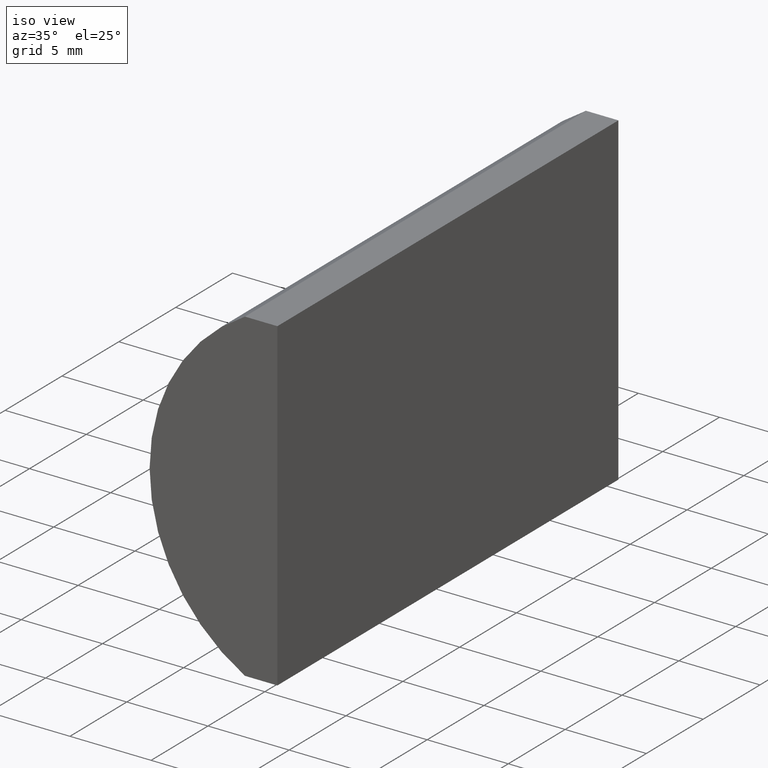
[diagram: clean part render]
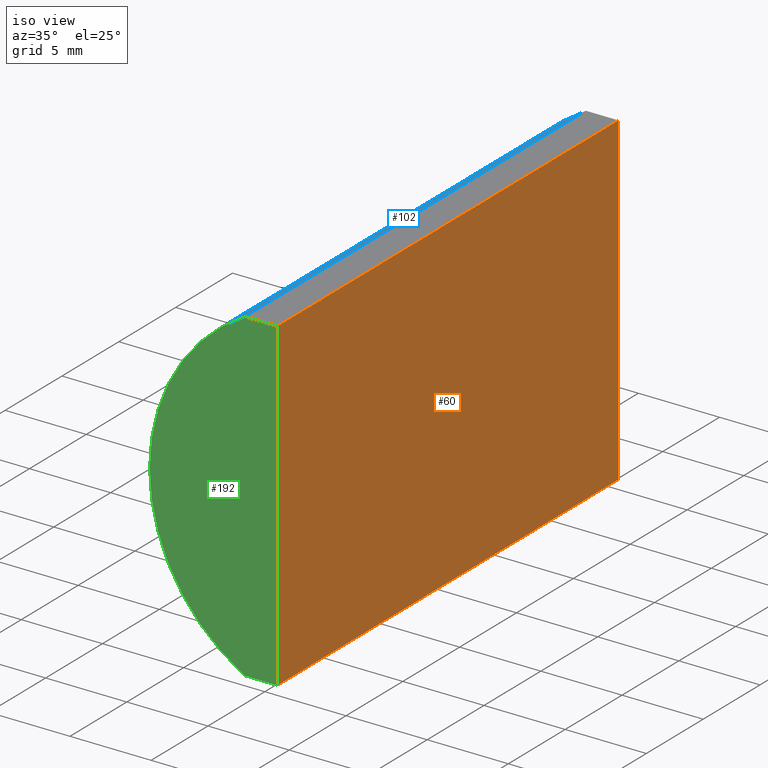
[diagram: same view with three faces highlighted in distinct colors, each labeled with its STEP entity id]
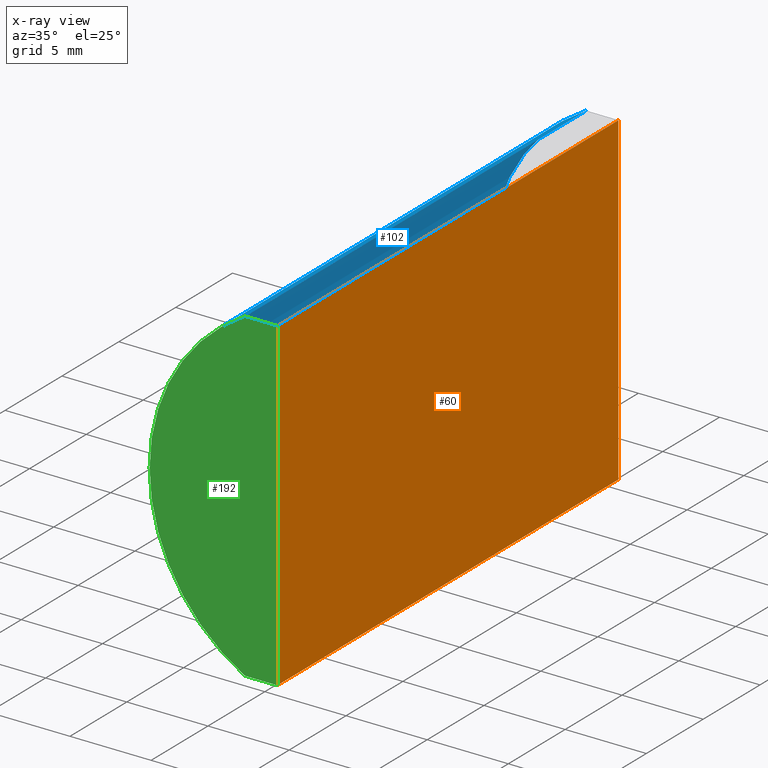
[diagram: x-ray of the same camera — body ghosted, the three highlighted faces saturated]
A machine part, iso view with three faces highlighted in distinct colors.
The next image is the same camera in x-ray (body ghosted, the three faces saturated) — at least one of them is partly hidden behind the body in this view.
Their STEP definitions:

[orange] entity #60 — the highlighted planar face has unit normal (-1, 0, 0).
#3 = ORIENTED_EDGE ( 'NONE', *, *, #173, .F. ) ;
#22 = CARTESIAN_POINT ( 'NONE',  ( 0.7752043348512593900, 0.0000000000000000000, -10.00000000000000400 ) ) ;
#24 = ORIENTED_EDGE ( 'NONE', *, *, #80, .T. ) ;
#27 = PLANE ( 'NONE',  #100 ) ;
#40 = VERTEX_POINT ( 'NONE', #22 ) ;
#45 = ORIENTED_EDGE ( 'NONE', *, *, #187, .T. ) ;
#47 = CARTESIAN_POINT ( 'NONE',  ( 0.7752043348512593900, 0.0000000000000000000, -10.00000000000000400 ) ) ;
#54 = VECTOR ( 'NONE', #93, 1000.000000000000000 ) ;
#57 = CARTESIAN_POINT ( 'NONE',  ( 0.7752043348512593900, 30.00000000000000000, -10.00000000000000400 ) ) ;
#60 = ADVANCED_FACE ( 'NONE', ( #117 ), #27, .F. ) ;
#61 = CARTESIAN_POINT ( 'NONE',  ( 0.7752043348512655000, 30.00000000000000000, 10.00000000000000000 ) ) ;
#64 = DIRECTION ( 'NONE',  ( 3.035766082959411900E-016, 0.0000000000000000000, 1.000000000000000000 ) ) ;
#66 = LINE ( 'NONE', #57, #142 ) ;
#68 = VERTEX_POINT ( 'NONE', #124 ) ;
#71 = CARTESIAN_POINT ( 'NONE',  ( 0.7752043348512593900, 30.00000000000000000, -10.00000000000000400 ) ) ;
#75 = DIRECTION ( 'NONE',  ( -0.0000000000000000000, -1.000000000000000000, -0.0000000000000000000 ) ) ;
#76 = EDGE_LOOP ( 'NONE', ( #45, #153, #3, #24 ) ) ;
#80 = EDGE_CURVE ( 'NONE', #68, #149, #162, .T. ) ;
#82 = CARTESIAN_POINT ( 'NONE',  ( 0.7752043348512593900, 30.00000000000000000, -10.00000000000000400 ) ) ;
#93 = DIRECTION ( 'NONE',  ( -0.0000000000000000000, -1.000000000000000000, -0.0000000000000000000 ) ) ;
#100 = AXIS2_PLACEMENT_3D ( 'NONE', #150, #147, #64 ) ;
#106 = CARTESIAN_POINT ( 'NONE',  ( 0.7752043348512655000, 0.0000000000000000000, 10.00000000000000000 ) ) ;
#112 = VECTOR ( 'NONE', #138, 1000.000000000000000 ) ;
#113 = EDGE_CURVE ( 'NONE', #125, #40, #66, .T. ) ;
#117 = FACE_OUTER_BOUND ( 'NONE', #76, .T. ) ;
#118 = LINE ( 'NONE', #47, #176 ) ;
#124 = CARTESIAN_POINT ( 'NONE',  ( 0.7752043348512655000, 30.00000000000000000, 10.00000000000000000 ) ) ;
#125 = VERTEX_POINT ( 'NONE', #71 ) ;
#138 = DIRECTION ( 'NONE',  ( -3.035766082959411900E-016, -0.0000000000000000000, -1.000000000000000000 ) ) ;
#142 = VECTOR ( 'NONE', #75, 1000.000000000000000 ) ;
#147 = DIRECTION ( 'NONE',  ( -1.000000000000000000, 0.0000000000000000000, 3.035766082959411900E-016 ) ) ;
#149 = VERTEX_POINT ( 'NONE', #106 ) ;
#150 = CARTESIAN_POINT ( 'NONE',  ( 0.7752043348512593900, 30.00000000000000000, -10.00000000000000400 ) ) ;
#153 = ORIENTED_EDGE ( 'NONE', *, *, #113, .F. ) ;
#156 = LINE ( 'NONE', #82, #112 ) ;
#162 = LINE ( 'NONE', #61, #54 ) ;
#173 = EDGE_CURVE ( 'NONE', #68, #125, #156, .T. ) ;
#176 = VECTOR ( 'NONE', #204, 1000.000000000000000 ) ;
#187 = EDGE_CURVE ( 'NONE', #149, #40, #118, .T. ) ;
#204 = DIRECTION ( 'NONE',  ( -3.035766082959411900E-016, -0.0000000000000000000, -1.000000000000000000 ) ) ;

[blue] entity #102 — the highlighted cylindrical surface (partial cylindrical patch) has radius 11.45 mm, axis along (-0, -1, -0).
#1 = EDGE_CURVE ( 'NONE', #183, #32, #134, .T. ) ;
#4 = EDGE_CURVE ( 'NONE', #175, #183, #56, .T. ) ;
#5 = VECTOR ( 'NONE', #172, 1000.000000000000000 ) ;
#6 = CARTESIAN_POINT ( 'NONE',  ( -1.221757203477694200, 0.0000000000000000000, 10.00000000000000000 ) ) ;
#11 = ORIENTED_EDGE ( 'NONE', *, *, #1, .F. ) ;
#12 = ORIENTED_EDGE ( 'NONE', *, *, #4, .F. ) ;
#23 = CARTESIAN_POINT ( 'NONE',  ( -1.221757203477694200, 30.00000000000000000, 10.00000000000000000 ) ) ;
#29 = EDGE_LOOP ( 'NONE', ( #73, #11, #12, #131 ) ) ;
#32 = VERTEX_POINT ( 'NONE', #6 ) ;
#37 = DIRECTION ( 'NONE',  ( 0.0000000000000000000, 1.000000000000000000, 0.0000000000000000000 ) ) ;
#41 = DIRECTION ( 'NONE',  ( -0.0000000000000000000, -1.000000000000000000, -0.0000000000000000000 ) ) ;
#42 = CARTESIAN_POINT ( 'NONE',  ( -1.221757203477650000, 30.00000000000000000, -10.00000000000000000 ) ) ;
#46 = DIRECTION ( 'NONE',  ( 0.0000000000000000000, 1.000000000000000000, 0.0000000000000000000 ) ) ;
#48 = EDGE_CURVE ( 'NONE', #175, #119, #88, .T. ) ;
#49 = CARTESIAN_POINT ( 'NONE',  ( -1.221757203477650000, 30.00000000000000000, -10.00000000000000000 ) ) ;
#50 = CYLINDRICAL_SURFACE ( 'NONE', #114, 11.45000000000001200 ) ;
#56 = CIRCLE ( 'NONE', #97, 11.45000000000001200 ) ;
#72 = CARTESIAN_POINT ( 'NONE',  ( 4.355204334851265500, 30.00000000000000000, 4.286263797015675000E-017 ) ) ;
#73 = ORIENTED_EDGE ( 'NONE', *, *, #152, .T. ) ;
#88 = LINE ( 'NONE', #49, #122 ) ;
#89 = CARTESIAN_POINT ( 'NONE',  ( -1.221757203477694200, 30.00000000000000000, 10.00000000000000000 ) ) ;
#94 = DIRECTION ( 'NONE',  ( -0.0000000000000000000, -1.000000000000000000, -0.0000000000000000000 ) ) ;
#95 = DIRECTION ( 'NONE',  ( 0.0000000000000000000, 0.0000000000000000000, 1.000000000000000000 ) ) ;
#97 = AXIS2_PLACEMENT_3D ( 'NONE', #143, #37, #108 ) ;
#101 = FACE_OUTER_BOUND ( 'NONE', #29, .T. ) ;
#102 = ADVANCED_FACE ( 'NONE', ( #101 ), #50, .T. ) ;
#108 = DIRECTION ( 'NONE',  ( 0.0000000000000000000, 0.0000000000000000000, 1.000000000000000000 ) ) ;
#114 = AXIS2_PLACEMENT_3D ( 'NONE', #72, #94, #197 ) ;
#119 = VERTEX_POINT ( 'NONE', #164 ) ;
#122 = VECTOR ( 'NONE', #41, 1000.000000000000000 ) ;
#131 = ORIENTED_EDGE ( 'NONE', *, *, #48, .T. ) ;
#134 = LINE ( 'NONE', #89, #5 ) ;
#139 = AXIS2_PLACEMENT_3D ( 'NONE', #167, #46, #95 ) ;
#143 = CARTESIAN_POINT ( 'NONE',  ( 4.355204334851265500, 30.00000000000000000, 4.286263797015675000E-017 ) ) ;
#151 = CIRCLE ( 'NONE', #139, 11.45000000000001200 ) ;
#152 = EDGE_CURVE ( 'NONE', #119, #32, #151, .T. ) ;
#164 = CARTESIAN_POINT ( 'NONE',  ( -1.221757203477650000, 0.0000000000000000000, -10.00000000000000000 ) ) ;
#167 = CARTESIAN_POINT ( 'NONE',  ( 4.355204334851265500, 0.0000000000000000000, 4.286263797015675000E-017 ) ) ;
#172 = DIRECTION ( 'NONE',  ( -0.0000000000000000000, -1.000000000000000000, -0.0000000000000000000 ) ) ;
#175 = VERTEX_POINT ( 'NONE', #42 ) ;
#183 = VERTEX_POINT ( 'NONE', #23 ) ;
#197 = DIRECTION ( 'NONE',  ( 0.0000000000000000000, 0.0000000000000000000, -1.000000000000000000 ) ) ;

[green] entity #192 — the highlighted planar face has unit normal (0, 1, 0).
#6 = CARTESIAN_POINT ( 'NONE',  ( -1.221757203477694200, 0.0000000000000000000, 10.00000000000000000 ) ) ;
#14 = EDGE_LOOP ( 'NONE', ( #77, #166, #65, #201 ) ) ;
#22 = CARTESIAN_POINT ( 'NONE',  ( 0.7752043348512593900, 0.0000000000000000000, -10.00000000000000400 ) ) ;
#32 = VERTEX_POINT ( 'NONE', #6 ) ;
#35 = EDGE_CURVE ( 'NONE', #32, #149, #104, .T. ) ;
#40 = VERTEX_POINT ( 'NONE', #22 ) ;
#46 = DIRECTION ( 'NONE',  ( 0.0000000000000000000, 1.000000000000000000, 0.0000000000000000000 ) ) ;
#47 = CARTESIAN_POINT ( 'NONE',  ( 0.7752043348512593900, 0.0000000000000000000, -10.00000000000000400 ) ) ;
#52 = AXIS2_PLACEMENT_3D ( 'NONE', #105, #110, #90 ) ;
#65 = ORIENTED_EDGE ( 'NONE', *, *, #187, .F. ) ;
#77 = ORIENTED_EDGE ( 'NONE', *, *, #152, .F. ) ;
#79 = VECTOR ( 'NONE', #96, 1000.000000000000000 ) ;
#90 = DIRECTION ( 'NONE',  ( 0.0000000000000000000, -0.0000000000000000000, 1.000000000000000000 ) ) ;
#91 = CARTESIAN_POINT ( 'NONE',  ( -1.221757203477694200, 0.0000000000000000000, 10.00000000000000000 ) ) ;
#95 = DIRECTION ( 'NONE',  ( 0.0000000000000000000, 0.0000000000000000000, 1.000000000000000000 ) ) ;
#96 = DIRECTION ( 'NONE',  ( -1.000000000000000000, -0.0000000000000000000, 1.737362931314593500E-015 ) ) ;
#104 = LINE ( 'NONE', #91, #179 ) ;
#105 = CARTESIAN_POINT ( 'NONE',  ( 4.355204334851265500, 0.0000000000000000000, 4.286263797015675000E-017 ) ) ;
#106 = CARTESIAN_POINT ( 'NONE',  ( 0.7752043348512655000, 0.0000000000000000000, 10.00000000000000000 ) ) ;
#110 = DIRECTION ( 'NONE',  ( 0.0000000000000000000, 1.000000000000000000, 0.0000000000000000000 ) ) ;
#118 = LINE ( 'NONE', #47, #176 ) ;
#119 = VERTEX_POINT ( 'NONE', #164 ) ;
#123 = FACE_OUTER_BOUND ( 'NONE', #14, .T. ) ;
#139 = AXIS2_PLACEMENT_3D ( 'NONE', #167, #46, #95 ) ;
#148 = PLANE ( 'NONE',  #52 ) ;
#149 = VERTEX_POINT ( 'NONE', #106 ) ;
#151 = CIRCLE ( 'NONE', #139, 11.45000000000001200 ) ;
#152 = EDGE_CURVE ( 'NONE', #119, #32, #151, .T. ) ;
#155 = LINE ( 'NONE', #196, #79 ) ;
#157 = DIRECTION ( 'NONE',  ( 1.000000000000000000, 0.0000000000000000000, 0.0000000000000000000 ) ) ;
#164 = CARTESIAN_POINT ( 'NONE',  ( -1.221757203477650000, 0.0000000000000000000, -10.00000000000000000 ) ) ;
#166 = ORIENTED_EDGE ( 'NONE', *, *, #181, .F. ) ;
#167 = CARTESIAN_POINT ( 'NONE',  ( 4.355204334851265500, 0.0000000000000000000, 4.286263797015675000E-017 ) ) ;
#176 = VECTOR ( 'NONE', #204, 1000.000000000000000 ) ;
#179 = VECTOR ( 'NONE', #157, 1000.000000000000000 ) ;
#181 = EDGE_CURVE ( 'NONE', #40, #119, #155, .T. ) ;
#187 = EDGE_CURVE ( 'NONE', #149, #40, #118, .T. ) ;
#192 = ADVANCED_FACE ( 'NONE', ( #123 ), #148, .F. ) ;
#196 = CARTESIAN_POINT ( 'NONE',  ( -1.221757203477650000, 0.0000000000000000000, -10.00000000000000000 ) ) ;
#201 = ORIENTED_EDGE ( 'NONE', *, *, #35, .F. ) ;
#204 = DIRECTION ( 'NONE',  ( -3.035766082959411900E-016, -0.0000000000000000000, -1.000000000000000000 ) ) ;